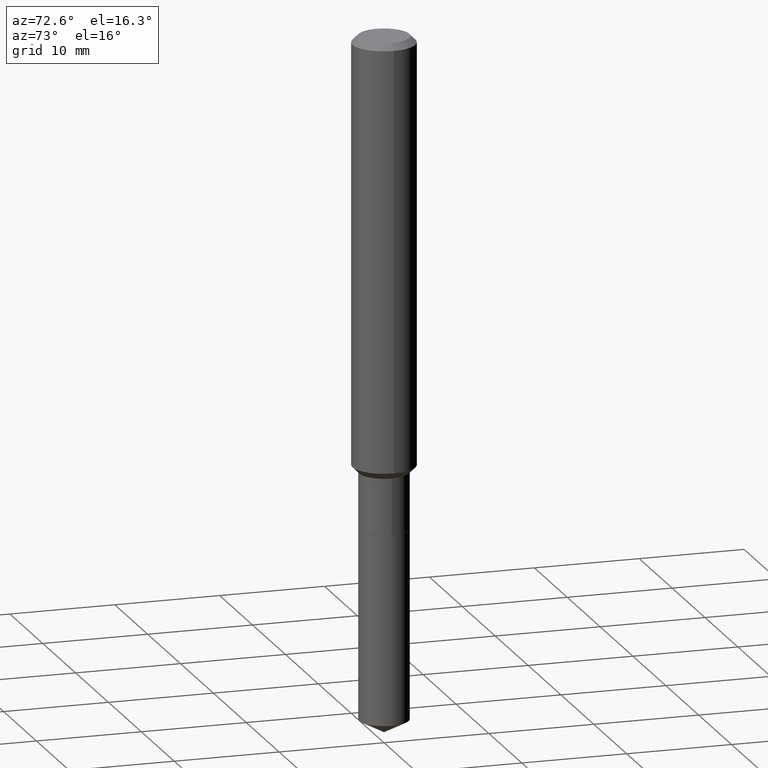
[diagram: clean part render]
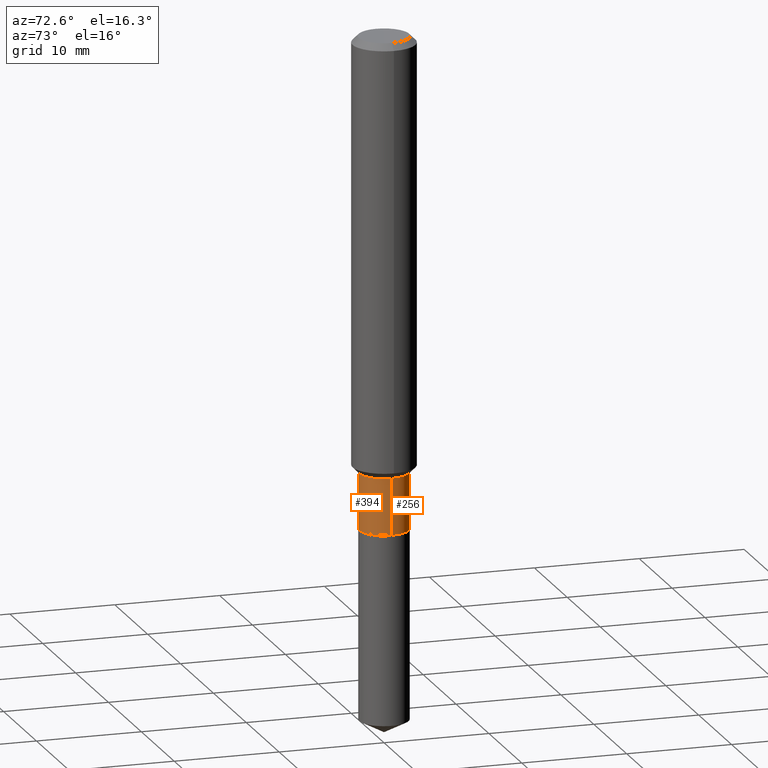
[diagram: same view with one multi-face feature highlighted, each face labeled with its STEP entity id]
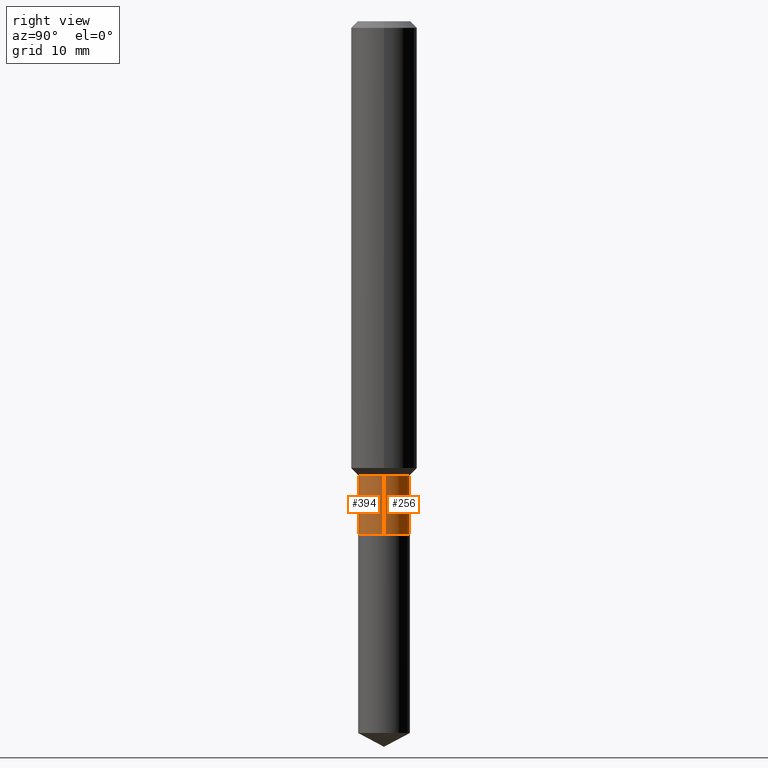
[diagram: same view with one multi-face feature highlighted, each face labeled with its STEP entity id]
A machine part, auxiliary view. The highlighted faces form ONE feature: a constant-radius fillet chain: 2 tangent blend faces with common blend radius 2.3495 mm. The faces share edges in the B-rep.
A second angle (right view) of the same feature is appended — it is thin or edge-on in the first view.
Their STEP definitions:
[1] entity #256 (Cylinder):
#5 = EDGE_CURVE ( 'NONE', #46, #387, #107, .T. ) ;
#14 = CARTESIAN_POINT ( 'NONE',  ( 3.975598638215176219E-29, -5.676101212557301529E-15, -1.625699999999999923 ) ) ;
#18 = CARTESIAN_POINT ( 'NONE',  ( -0.09249999999999998501, -5.389469926097407680E-15, -1.837999999999999856 ) ) ;
#23 = VECTOR ( 'NONE', #191, 39.37007874015748143 ) ;
#46 = VERTEX_POINT ( 'NONE', #465 ) ;
#55 = CARTESIAN_POINT ( 'NONE',  ( 0.09249999999999998501, -6.459240476859795918E-16, 4.510463517611239347E-30 ) ) ;
#64 = VECTOR ( 'NONE', #244, 39.37007874015748143 ) ;
#78 = ORIENTED_EDGE ( 'NONE', *, *, #382, .T. ) ;
#82 = EDGE_CURVE ( 'NONE', #141, #462, #392, .T. ) ;
#104 = EDGE_LOOP ( 'NONE', ( #341, #78, #182, #201 ) ) ;
#107 = CIRCLE ( 'NONE', #226, 0.09249999999999998501 ) ;
#127 = DIRECTION ( 'NONE',  ( 1.000000000000000000, -6.982962677686265922E-15, 0.000000000000000000 ) ) ;
#141 = VERTEX_POINT ( 'NONE', #175 ) ;
#175 = CARTESIAN_POINT ( 'NONE',  ( 0.09249999999999998501, -7.063266748479680329E-15, -1.837999999999999856 ) ) ;
#178 = AXIS2_PLACEMENT_3D ( 'NONE', #466, #437, #127 ) ;
#182 = ORIENTED_EDGE ( 'NONE', *, *, #5, .F. ) ;
#191 = DIRECTION ( 'NONE',  ( -2.445468806185136877E-29, 3.491481338843145188E-15, 1.000000000000000000 ) ) ;
#201 = ORIENTED_EDGE ( 'NONE', *, *, #429, .F. ) ;
#222 = DIRECTION ( 'NONE',  ( -2.445468806185136597E-29, 3.491481338843145583E-15, 1.000000000000000000 ) ) ;
#226 = AXIS2_PLACEMENT_3D ( 'NONE', #14, #235, #241 ) ;
#232 = LINE ( 'NONE', #378, #23 ) ;
#235 = DIRECTION ( 'NONE',  ( -2.445468806185136597E-29, 3.491481338843145583E-15, 1.000000000000000000 ) ) ;
#241 = DIRECTION ( 'NONE',  ( 1.000000000000000000, -6.982962677686265922E-15, 0.000000000000000000 ) ) ;
#244 = DIRECTION ( 'NONE',  ( -2.445468806185136877E-29, 3.491481338843145188E-15, 1.000000000000000000 ) ) ;
#248 = LINE ( 'NONE', #55, #64 ) ;
#256 = ADVANCED_FACE ( 'NONE', ( #405 ), #259, .T. ) ;
#259 = CYLINDRICAL_SURFACE ( 'NONE', #475, 0.09249999999999998501 ) ;
#334 = DIRECTION ( 'NONE',  ( 1.000000000000000000, -6.982962677686266711E-15, 4.876176775795935232E-29 ) ) ;
#341 = ORIENTED_EDGE ( 'NONE', *, *, #82, .T. ) ;
#378 = CARTESIAN_POINT ( 'NONE',  ( -0.09249999999999998501, 6.572520305780925654E-16, -4.550014958485786769E-30 ) ) ;
#382 = EDGE_CURVE ( 'NONE', #462, #387, #232, .T. ) ;
#387 = VERTEX_POINT ( 'NONE', #418 ) ;
#392 = CIRCLE ( 'NONE', #178, 0.09249999999999998501 ) ;
#405 = FACE_OUTER_BOUND ( 'NONE', #104, .T. ) ;
#418 = CARTESIAN_POINT ( 'NONE',  ( -0.09249999999999998501, -5.389469926097407680E-15, -1.625699999999999923 ) ) ;
#429 = EDGE_CURVE ( 'NONE', #141, #46, #248, .T. ) ;
#437 = DIRECTION ( 'NONE',  ( -2.445468806185136597E-29, 3.491481338843145583E-15, 1.000000000000000000 ) ) ;
#441 = CARTESIAN_POINT ( 'NONE',  ( 0.000000000000000000, 0.000000000000000000, 0.000000000000000000 ) ) ;
#462 = VERTEX_POINT ( 'NONE', #18 ) ;
#465 = CARTESIAN_POINT ( 'NONE',  ( 0.09249999999999998501, -6.322025260243280726E-15, -1.625699999999999923 ) ) ;
#466 = CARTESIAN_POINT ( 'NONE',  ( 4.494771665768280625E-29, -6.417342700793701132E-15, -1.837999999999999856 ) ) ;
#475 = AXIS2_PLACEMENT_3D ( 'NONE', #441, #222, #334 ) ;
[2] entity #394 (Cylinder):
#11 = CIRCLE ( 'NONE', #37, 0.09249999999999998501 ) ;
#18 = CARTESIAN_POINT ( 'NONE',  ( -0.09249999999999998501, -5.389469926097407680E-15, -1.837999999999999856 ) ) ;
#23 = VECTOR ( 'NONE', #191, 39.37007874015748143 ) ;
#36 = EDGE_CURVE ( 'NONE', #462, #141, #485, .T. ) ;
#37 = AXIS2_PLACEMENT_3D ( 'NONE', #109, #340, #489 ) ;
#46 = VERTEX_POINT ( 'NONE', #465 ) ;
#55 = CARTESIAN_POINT ( 'NONE',  ( 0.09249999999999998501, -6.459240476859795918E-16, 4.510463517611239347E-30 ) ) ;
#64 = VECTOR ( 'NONE', #244, 39.37007874015748143 ) ;
#77 = CYLINDRICAL_SURFACE ( 'NONE', #204, 0.09249999999999998501 ) ;
#91 = CARTESIAN_POINT ( 'NONE',  ( 4.494771665768280625E-29, -6.417342700793701132E-15, -1.837999999999999856 ) ) ;
#95 = DIRECTION ( 'NONE',  ( -2.445468806185136597E-29, 3.491481338843145583E-15, 1.000000000000000000 ) ) ;
#109 = CARTESIAN_POINT ( 'NONE',  ( 3.975598638215176219E-29, -5.676101212557301529E-15, -1.625699999999999923 ) ) ;
#125 = EDGE_LOOP ( 'NONE', ( #271, #422, #150, #240 ) ) ;
#141 = VERTEX_POINT ( 'NONE', #175 ) ;
#150 = ORIENTED_EDGE ( 'NONE', *, *, #429, .T. ) ;
#175 = CARTESIAN_POINT ( 'NONE',  ( 0.09249999999999998501, -7.063266748479680329E-15, -1.837999999999999856 ) ) ;
#191 = DIRECTION ( 'NONE',  ( -2.445468806185136877E-29, 3.491481338843145188E-15, 1.000000000000000000 ) ) ;
#200 = DIRECTION ( 'NONE',  ( -2.445468806185136597E-29, 3.491481338843145583E-15, 1.000000000000000000 ) ) ;
#204 = AXIS2_PLACEMENT_3D ( 'NONE', #237, #200, #351 ) ;
#232 = LINE ( 'NONE', #378, #23 ) ;
#237 = CARTESIAN_POINT ( 'NONE',  ( 0.000000000000000000, 0.000000000000000000, 0.000000000000000000 ) ) ;
#240 = ORIENTED_EDGE ( 'NONE', *, *, #279, .F. ) ;
#244 = DIRECTION ( 'NONE',  ( -2.445468806185136877E-29, 3.491481338843145188E-15, 1.000000000000000000 ) ) ;
#248 = LINE ( 'NONE', #55, #64 ) ;
#271 = ORIENTED_EDGE ( 'NONE', *, *, #382, .F. ) ;
#279 = EDGE_CURVE ( 'NONE', #387, #46, #11, .T. ) ;
#320 = DIRECTION ( 'NONE',  ( 1.000000000000000000, -6.982962677686265922E-15, 0.000000000000000000 ) ) ;
#340 = DIRECTION ( 'NONE',  ( -2.445468806185136597E-29, 3.491481338843145583E-15, 1.000000000000000000 ) ) ;
#351 = DIRECTION ( 'NONE',  ( 1.000000000000000000, -6.982962677686266711E-15, 4.876176775795935232E-29 ) ) ;
#378 = CARTESIAN_POINT ( 'NONE',  ( -0.09249999999999998501, 6.572520305780925654E-16, -4.550014958485786769E-30 ) ) ;
#382 = EDGE_CURVE ( 'NONE', #462, #387, #232, .T. ) ;
#387 = VERTEX_POINT ( 'NONE', #418 ) ;
#394 = ADVANCED_FACE ( 'NONE', ( #416 ), #77, .T. ) ;
#416 = FACE_OUTER_BOUND ( 'NONE', #125, .T. ) ;
#418 = CARTESIAN_POINT ( 'NONE',  ( -0.09249999999999998501, -5.389469926097407680E-15, -1.625699999999999923 ) ) ;
#422 = ORIENTED_EDGE ( 'NONE', *, *, #36, .T. ) ;
#429 = EDGE_CURVE ( 'NONE', #141, #46, #248, .T. ) ;
#462 = VERTEX_POINT ( 'NONE', #18 ) ;
#465 = CARTESIAN_POINT ( 'NONE',  ( 0.09249999999999998501, -6.322025260243280726E-15, -1.625699999999999923 ) ) ;
#474 = AXIS2_PLACEMENT_3D ( 'NONE', #91, #95, #320 ) ;
#485 = CIRCLE ( 'NONE', #474, 0.09249999999999998501 ) ;
#489 = DIRECTION ( 'NONE',  ( 1.000000000000000000, -6.982962677686265922E-15, 0.000000000000000000 ) ) ;